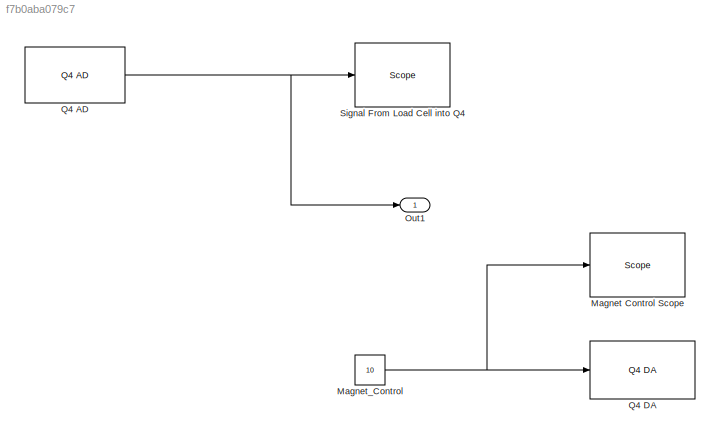
MODEL slx_f7b0aba079c7
KIND model
CONFIG AbsTol = auto
CONFIG EnableMultiTasking = on
CONFIG FixedStep = 0.001
CONFIG MaxStep = auto
CONFIG MinStep = auto
CONFIG RelTol = 1e-3
CONFIG SampleTimeConstraint = Unconstrained
CONFIG Solver = FixedStepDiscrete
CONFIG SolverName = FixedStepDiscrete
CONFIG StartTime = 0.0
CONFIG StopTime = inf
BLOCK [Reference] Magnet Control Scope  REF=slrtlib/Displays and
Logging/Scope 
  Ports = [1]
  SourceBlock = slrtlib/Displays and\nLogging/Scope
  SourceProductBaseCode = XP
  SourceProductName = Simulink Real-Time
  SourceType = xpcscopeblock
BLOCK [Constant] Magnet_Control
  Value = 10
BLOCK [Outport] Out1
  IconDisplay = Port number
BLOCK [Reference] Q4 AD  REF=xpcquanserlib/A//D/Q4 AD
  Ports = [0, 1]
  SourceBlock = xpcquanserlib/A//D/Q4 AD
  SourceProductBaseCode = XP
  SourceProductName = Simulink Real-Time
  SourceType = quanser_q4_ad
BLOCK [Reference] Q4 DA   REF=xpcquanserlib/D//A/Q4 DA 
  Ports = [1]
  SourceBlock = xpcquanserlib/D//A/Q4 DA
  SourceProductBaseCode = XP
  SourceProductName = Simulink Real-Time
  SourceType = quanser_q4_da
BLOCK [Reference] Signal From Load Cell into Q4  REF=slrtlib/Displays and
Logging/Scope 
  Ports = [1]
  SourceBlock = slrtlib/Displays and\nLogging/Scope
  SourceProductBaseCode = XP
  SourceProductName = Simulink Real-Time
  SourceType = xpcscopeblock
NET Magnet_Control:1 -> Magnet Control Scope:1, Q4 DA :1
NET Q4 AD:1 -> Out1:1, Signal From Load Cell into Q4:1
note: NET lines group one-source signal fan-out (src -> all destinations, sorted); 1:1 wires keep LINE
